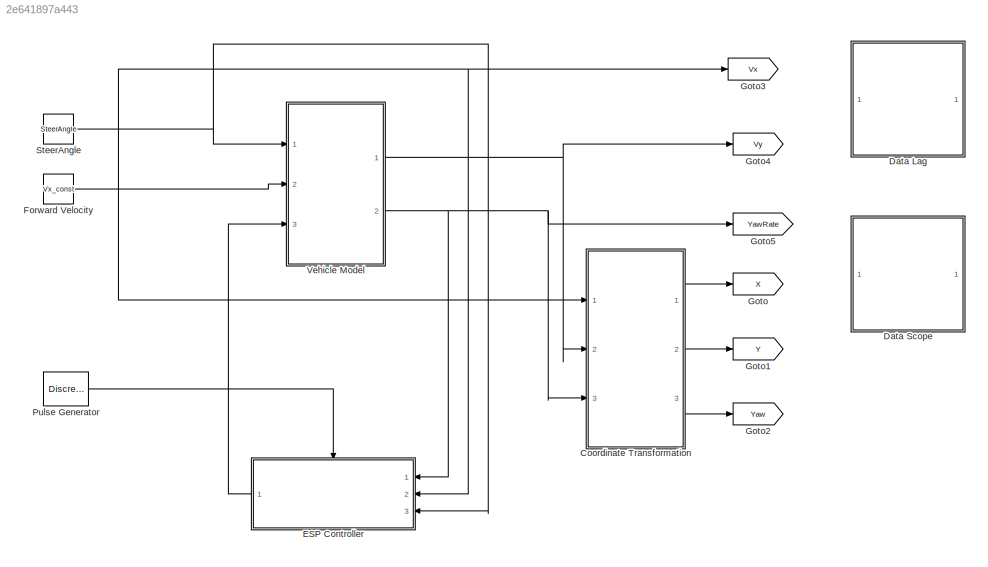
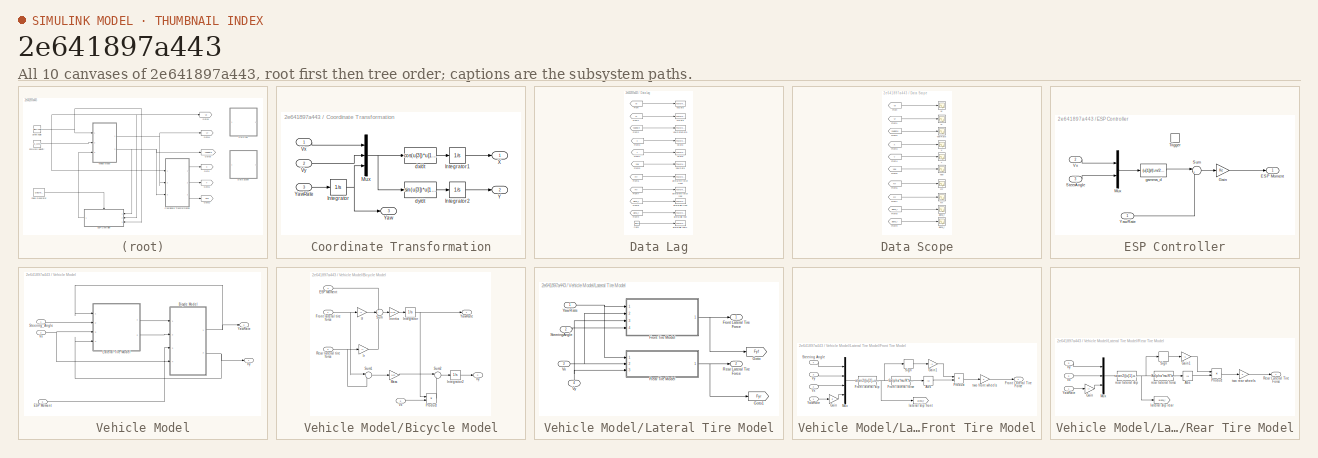
[diagram: thumbnail index - all 10 canvases of the model, root first then tree order]
MODEL slx_2e641897a443
KIND model
CONFIG AbsTol = auto
CONFIG EnableMultiTasking = on
CONFIG FixedStep = auto
CONFIG MaxStep = auto
CONFIG MinStep = auto
CONFIG RelTol = 1e-3
CONFIG SampleTimeConstraint = Unconstrained
CONFIG Solver = ode45
CONFIG SolverName = ode45
CONFIG StartTime = 0.0
CONFIG StopTime = Tfinal
BLOCK [SubSystem] Coordinate Transformation
  Ports = [3, 3]
  RequestExecContextInheritance = off
BLOCK [Integrator] Coordinate Transformation/Integrator
  InitialCondition = Yaw0
  Ports = [1, 1]
BLOCK [Integrator] Coordinate Transformation/Integrator1
  InitialCondition = X0
  Ports = [1, 1]
BLOCK [Integrator] Coordinate Transformation/Integrator2
  InitialCondition = Y0
  Ports = [1, 1]
BLOCK [Mux] Coordinate Transformation/Mux
  DisplayOption = bar
  Inputs = 3
  Ports = [3, 1]
BLOCK [Inport] Coordinate Transformation/Vx
BLOCK [Inport] Coordinate Transformation/Vy
  Port = 2
BLOCK [Outport] Coordinate Transformation/X
BLOCK [Outport] Coordinate Transformation/Y
  Port = 2
BLOCK [Outport] Coordinate Transformation/Yaw
  Port = 3
BLOCK [Inport] Coordinate Transformation/YawRate
  Port = 3
BLOCK [Fcn] Coordinate Transformation/dx//dt
  Expr = cos(u[3])*u[1] - sin(u[3])*u[2]
BLOCK [Fcn] Coordinate Transformation/dy//dt
  Expr = sin(u[3])*u[1] + cos(u[3])*u[2]
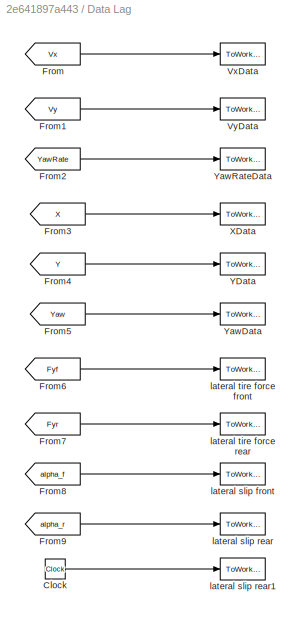
BLOCK [SubSystem] Data Lag
  Ports = []
  RequestExecContextInheritance = off
BLOCK [Clock] Data Lag/Clock
BLOCK [From] Data Lag/From
  CloseFcn = tagdialog Close
  GotoTag = Vx
  TagVisibility = global
BLOCK [From] Data Lag/From1
  CloseFcn = tagdialog Close
  GotoTag = Vy
  TagVisibility = global
BLOCK [From] Data Lag/From2
  CloseFcn = tagdialog Close
  GotoTag = YawRate
  TagVisibility = global
BLOCK [From] Data Lag/From3
  CloseFcn = tagdialog Close
  GotoTag = X
  TagVisibility = global
BLOCK [From] Data Lag/From4
  CloseFcn = tagdialog Close
  GotoTag = Y
  TagVisibility = global
BLOCK [From] Data Lag/From5
  CloseFcn = tagdialog Close
  GotoTag = Yaw
  TagVisibility = global
BLOCK [From] Data Lag/From6
  CloseFcn = tagdialog Close
  GotoTag = Fyf
  TagVisibility = global
BLOCK [From] Data Lag/From7
  CloseFcn = tagdialog Close
  GotoTag = Fyr
  TagVisibility = global
BLOCK [From] Data Lag/From8
  CloseFcn = tagdialog Close
  GotoTag = alpha_f
  TagVisibility = global
BLOCK [From] Data Lag/From9
  CloseFcn = tagdialog Close
  GotoTag = alpha_r
  TagVisibility = global
BLOCK [ToWorkspace] Data Lag/VxData
  MaxDataPoints = inf
  Ports = [1]
  SampleTime = -1
  VariableName = Vx
BLOCK [ToWorkspace] Data Lag/VyData
  MaxDataPoints = inf
  Ports = [1]
  SampleTime = -1
  VariableName = Vy
BLOCK [ToWorkspace] Data Lag/XData
  MaxDataPoints = inf
  Ports = [1]
  SampleTime = -1
  VariableName = X
BLOCK [ToWorkspace] Data Lag/YData
  MaxDataPoints = inf
  Ports = [1]
  SampleTime = -1
  VariableName = Y
BLOCK [ToWorkspace] Data Lag/YawData
  MaxDataPoints = inf
  Ports = [1]
  SampleTime = -1
  VariableName = Yaw
BLOCK [ToWorkspace] Data Lag/YawRateData
  MaxDataPoints = inf
  Ports = [1]
  SampleTime = -1
  VariableName = YawRate
BLOCK [ToWorkspace] Data Lag/lateral slip front
  MaxDataPoints = inf
  Ports = [1]
  SampleTime = -1
  VariableName = alpha_f
BLOCK [ToWorkspace] Data Lag/lateral slip rear
  MaxDataPoints = inf
  Ports = [1]
  SampleTime = -1
  VariableName = alpha_r
BLOCK [ToWorkspace] Data Lag/lateral slip rear1
  MaxDataPoints = inf
  Ports = [1]
  SampleTime = -1
  VariableName = sim_time
BLOCK [ToWorkspace] Data Lag/lateral tire force front
  MaxDataPoints = inf
  Ports = [1]
  SampleTime = -1
  VariableName = Fyf
BLOCK [ToWorkspace] Data Lag/lateral tire force rear
  MaxDataPoints = inf
  Ports = [1]
  SampleTime = -1
  VariableName = Fyr
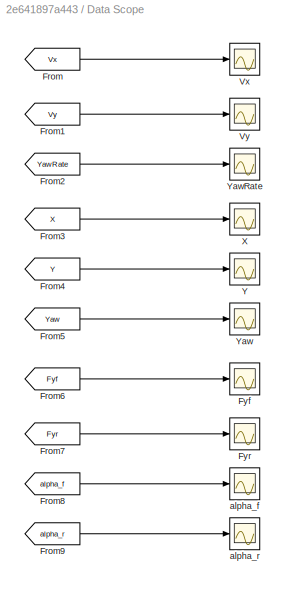
BLOCK [SubSystem] Data Scope
  Ports = []
  RequestExecContextInheritance = off
BLOCK [From] Data Scope/From
  CloseFcn = tagdialog Close
  GotoTag = Vx
  TagVisibility = global
BLOCK [From] Data Scope/From1
  CloseFcn = tagdialog Close
  GotoTag = Vy
  TagVisibility = global
BLOCK [From] Data Scope/From2
  CloseFcn = tagdialog Close
  GotoTag = YawRate
  TagVisibility = global
BLOCK [From] Data Scope/From3
  CloseFcn = tagdialog Close
  GotoTag = X
  TagVisibility = global
BLOCK [From] Data Scope/From4
  CloseFcn = tagdialog Close
  GotoTag = Y
  TagVisibility = global
BLOCK [From] Data Scope/From5
  CloseFcn = tagdialog Close
  GotoTag = Yaw
  TagVisibility = global
BLOCK [From] Data Scope/From6
  CloseFcn = tagdialog Close
  GotoTag = Fyf
  TagVisibility = global
BLOCK [From] Data Scope/From7
  CloseFcn = tagdialog Close
  GotoTag = Fyr
  TagVisibility = global
BLOCK [From] Data Scope/From8
  CloseFcn = tagdialog Close
  GotoTag = alpha_f
  TagVisibility = global
BLOCK [From] Data Scope/From9
  CloseFcn = tagdialog Close
  GotoTag = alpha_r
  TagVisibility = global
BLOCK [Scope] Data Scope/Fyf
  Floating = off
  NumInputPorts = 1
  Ports = [1]
  ScopeSpecificationString = C++SS(StrPVP('Location','[356, 496, 680, 735]'),StrPVP('Open','off'),MxPVP('AxesTitles',54,'struct(''axes1'',''%<SignalLabel>'')'),StrPVP('SaveName','ScopeData1'),StrPVP('DataFormat','StructureWithTime'),StrPVP('BlockParamSampleTime','0'),StrPVP('LimitDataPoints','on'),StrPVP('Decimation','1'),StrPVP('BlockParamSampleInput','off'))
BLOCK [Scope] Data Scope/Fyr
  Floating = off
  NumInputPorts = 1
  Ports = [1]
  ScopeSpecificationString = C++SS(StrPVP('Location','[356, 496, 680, 735]'),StrPVP('Open','off'),MxPVP('AxesTitles',54,'struct(''axes1'',''%<SignalLabel>'')'),StrPVP('SaveName','ScopeData3'),StrPVP('DataFormat','StructureWithTime'),StrPVP('BlockParamSampleTime','0'),StrPVP('LimitDataPoints','on'),StrPVP('Decimation','1'),StrPVP('BlockParamSampleInput','off'))
BLOCK [Scope] Data Scope/Vx
  Floating = off
  NumInputPorts = 1
  Ports = [1]
  ScopeSpecificationString = C++SS(StrPVP('Location','[356, 496, 680, 735]'),StrPVP('Open','off'),MxPVP('AxesTitles',54,'struct(''axes1'',''%<SignalLabel>'')'),StrPVP('SaveName','ScopeData2'),StrPVP('DataFormat','StructureWithTime'),StrPVP('BlockParamSampleTime','0'),StrPVP('LimitDataPoints','on'),StrPVP('Decimation','1'),StrPVP('BlockParamSampleInput','off'))
BLOCK [Scope] Data Scope/Vy
  Floating = off
  NumInputPorts = 1
  Ports = [1]
  ScopeSpecificationString = C++SS(StrPVP('Location','[356, 496, 680, 735]'),StrPVP('Open','off'),MxPVP('AxesTitles',54,'struct(''axes1'',''%<SignalLabel>'')'),StrPVP('SaveName','ScopeData4'),StrPVP('DataFormat','StructureWithTime'),StrPVP('BlockParamSampleTime','0'),StrPVP('LimitDataPoints','on'),StrPVP('Decimation','1'),StrPVP('BlockParamSampleInput','off'))
BLOCK [Scope] Data Scope/X
  Floating = off
  NumInputPorts = 1
  Ports = [1]
  ScopeSpecificationString = C++SS(StrPVP('Location','[353, 490, 677, 729]'),StrPVP('Open','off'),MxPVP('AxesTitles',54,'struct(''axes1'',''%<SignalLabel>'')'),StrPVP('YMin','73.5393'),StrPVP('YMax','81.2803'),StrPVP('SaveName','ScopeData5'),StrPVP('DataFormat','StructureWithTime'),StrPVP('BlockParamSampleTime','0'),StrPVP('LimitDataPoints','on'),StrPVP('Decimation','1'),StrPVP('BlockParamSampleInput','off'))
BLOCK [Scope] Data Scope/Y
  Floating = off
  NumInputPorts = 1
  Ports = [1]
  ScopeSpecificationString = C++SS(StrPVP('Location','[6, 497, 330, 736]'),StrPVP('Open','off'),MxPVP('AxesTitles',54,'struct(''axes1'',''%<SignalLabel>'')'),StrPVP('SaveName','ScopeData6'),StrPVP('DataFormat','StructureWithTime'),StrPVP('BlockParamSampleTime','0'),StrPVP('LimitDataPoints','on'),StrPVP('Decimation','1'),StrPVP('BlockParamSampleInput','off'))
BLOCK [Scope] Data Scope/Yaw
  Floating = off
  NumInputPorts = 1
  Ports = [1]
  ScopeSpecificationString = C++SS(StrPVP('Location','[75, 474, 399, 713]'),StrPVP('Open','off'),MxPVP('AxesTitles',54,'struct(''axes1'',''%<SignalLabel>'')'),StrPVP('SaveName','ScopeData10'),StrPVP('DataFormat','StructureWithTime'),StrPVP('BlockParamSampleTime','0'),StrPVP('LimitDataPoints','on'),StrPVP('Decimation','1'),StrPVP('BlockParamSampleInput','off'))
BLOCK [Scope] Data Scope/YawRate
  Floating = off
  NumInputPorts = 1
  Ports = [1]
  ScopeSpecificationString = C++SS(StrPVP('Location','[695, 498, 1019, 737]'),StrPVP('Open','off'),MxPVP('AxesTitles',54,'struct(''axes1'',''%<SignalLabel>'')'),StrPVP('YMin','23.7489'),StrPVP('YMax','26.2487'),StrPVP('SaveName','ScopeData11'),StrPVP('DataFormat','StructureWithTime'),StrPVP('BlockParamSampleTime','0'),StrPVP('LimitDataPoints','on'),StrPVP('Decimation','1'),StrPVP('BlockParamSampleInput','off'))
BLOCK [Scope] Data Scope/alpha_f
  Floating = off
  NumInputPorts = 1
  Ports = [1]
  ScopeSpecificationString = C++SS(StrPVP('Location','[695, 498, 1019, 737]'),StrPVP('Open','off'),MxPVP('AxesTitles',54,'struct(''axes1'',''%<SignalLabel>'')'),StrPVP('YMin','23.7489'),StrPVP('YMax','26.2487'),StrPVP('SaveName','ScopeData8'),StrPVP('DataFormat','StructureWithTime'),StrPVP('BlockParamSampleTime','0'),StrPVP('LimitDataPoints','on'),StrPVP('Decimation','1'),StrPVP('BlockParamSampleInput','off'))
BLOCK [Scope] Data Scope/alpha_r
  Floating = off
  NumInputPorts = 1
  Ports = [1]
  ScopeSpecificationString = C++SS(StrPVP('Location','[353, 490, 677, 729]'),StrPVP('Open','off'),MxPVP('AxesTitles',54,'struct(''axes1'',''%<SignalLabel>'')'),StrPVP('YMin','73.5393'),StrPVP('YMax','81.2803'),StrPVP('SaveName','ScopeData7'),StrPVP('DataFormat','StructureWithTime'),StrPVP('BlockParamSampleTime','0'),StrPVP('LimitDataPoints','on'),StrPVP('Decimation','1'),StrPVP('BlockParamSampleInput','off'))
BLOCK [SubSystem] ESP Controller
  Ports = [3, 1, 0, 1]
  RequestExecContextInheritance = off
BLOCK [Outport] ESP Controller/ESP Moment
BLOCK [Gain] ESP Controller/Gain
  Gain = Ke
BLOCK [Mux] ESP Controller/Mux
  DisplayOption = bar
  Inputs = 2
  Ports = [2, 1]
BLOCK [Inport] ESP Controller/SteerAngle
  Port = 3
BLOCK [Sum] ESP Controller/Sum
  Inputs = |+-
  Ports = [2, 1]
BLOCK [TriggerPort] ESP Controller/Trigger
  Ports = []
  StatesWhenEnabling = held
  VariantControl = (inherit)
BLOCK [Inport] ESP Controller/Vx
  Port = 2
BLOCK [Inport] ESP Controller/YawRate
BLOCK [Fcn] ESP Controller/gamma_d
  Expr = (u[1])/(l-m/2/l*(lf*Cf - lr*Cr)/Cf/Cr*u[1]^2)*u[2]
BLOCK [Constant] Forward Velocity
  Value = Vx_const
BLOCK [Goto] Goto
  GotoTag = X
  TagVisibility = global
BLOCK [Goto] Goto1
  GotoTag = Y
  TagVisibility = global
BLOCK [Goto] Goto2
  GotoTag = Yaw
  TagVisibility = global
BLOCK [Goto] Goto3
  GotoTag = Vx
  TagVisibility = global
BLOCK [Goto] Goto4
  GotoTag = Vy
  TagVisibility = global
BLOCK [Goto] Goto5
  GotoTag = YawRate
  TagVisibility = global
BLOCK [DiscretePulseGenerator] Pulse Generator
  Period = Tc
  Ports = [0, 1]
  PulseType = Time based
  PulseWidth = 50
BLOCK [Constant] SteerAngle
  Value = SteerAngle
BLOCK [SubSystem] Vehicle Model
  Ports = [3, 2]
  RequestExecContextInheritance = off
BLOCK [SubSystem] Vehicle Model/Bicycle Model
  Ports = [4, 2]
  RequestExecContextInheritance = off
BLOCK [Inport] Vehicle Model/Bicycle Model/ESP Moment
  Port = 4
BLOCK [Inport] Vehicle Model/Bicycle Model/Front lateral tire force
BLOCK [Gain] Vehicle Model/Bicycle Model/Inertia
  Gain = 1/Izz
BLOCK [Integrator] Vehicle Model/Bicycle Model/Integrator
  InitialCondition = yaw_rate0
  Ports = [1, 1]
BLOCK [Integrator] Vehicle Model/Bicycle Model/Integrator2
  InitialCondition = Vy0
  Ports = [1, 1]
BLOCK [Gain] Vehicle Model/Bicycle Model/Mass
  Gain = 1/m
BLOCK [Product] Vehicle Model/Bicycle Model/Product
  Ports = [2, 1]
  RndMeth = Zero
BLOCK [Inport] Vehicle Model/Bicycle Model/Rear lateral tire force
  Port = 2
BLOCK [Sum] Vehicle Model/Bicycle Model/Sum
  Inputs = ++-
  Ports = [3, 1]
BLOCK [Sum] Vehicle Model/Bicycle Model/Sum1
  Inputs = |++
  Ports = [2, 1]
BLOCK [Sum] Vehicle Model/Bicycle Model/Sum2
  Inputs = |+-
  Ports = [2, 1]
BLOCK [Inport] Vehicle Model/Bicycle Model/Vx
  Port = 3
BLOCK [Outport] Vehicle Model/Bicycle Model/Vy
  Port = 2
BLOCK [Outport] Vehicle Model/Bicycle Model/YawRate
BLOCK [Gain] Vehicle Model/Bicycle Model/lf
  Gain = lf
BLOCK [Gain] Vehicle Model/Bicycle Model/lr
  Gain = lr
BLOCK [Inport] Vehicle Model/ESP Moment
  Port = 3
BLOCK [SubSystem] Vehicle Model/Lateral Tire Model
  Ports = [4, 2]
  RequestExecContextInheritance = off
BLOCK [Outport] Vehicle Model/Lateral Tire Model/Front Lateral Tire Force
BLOCK [SubSystem] Vehicle Model/Lateral Tire Model/Front Tire Model
  Ports = [4, 1]
  RequestExecContextInheritance = off
BLOCK [Abs] Vehicle Model/Lateral Tire Model/Front Tire Model/Abs
  SaturateOnIntegerOverflow = off
BLOCK [Outport] Vehicle Model/Lateral Tire Model/Front Tire Model/Front Lateral Tire Force
BLOCK [Fcn] Vehicle Model/Lateral Tire Model/Front Tire Model/Front lateral force
  Expr = Calpha*mu/K*atan(K*u[1]/mu)
BLOCK [Fcn] Vehicle Model/Lateral Tire Model/Front Tire Model/Front lateral slip
  Expr = atan2((u[2]+u[4]), u[3])-u[1]
BLOCK [Gain] Vehicle Model/Lateral Tire Model/Front Tire Model/Gain
  Gain = lf
BLOCK [Gain] Vehicle Model/Lateral Tire Model/Front Tire Model/Gain1
  Gain = -1
BLOCK [Mux] Vehicle Model/Lateral Tire Model/Front Tire Model/Mux
  DisplayOption = bar
  Ports = [4, 1]
BLOCK [Product] Vehicle Model/Lateral Tire Model/Front Tire Model/Product
  Ports = [2, 1]
  RndMeth = Zero
BLOCK [Signum] Vehicle Model/Lateral Tire Model/Front Tire Model/Sign
BLOCK [Inport] Vehicle Model/Lateral Tire Model/Front Tire Model/Steering Angle
  Port = 4
BLOCK [Inport] Vehicle Model/Lateral Tire Model/Front Tire Model/Vx
  Port = 2
BLOCK [Inport] Vehicle Model/Lateral Tire Model/Front Tire Model/Vy
  Port = 3
BLOCK [Inport] Vehicle Model/Lateral Tire Model/Front Tire Model/YawRate
BLOCK [Goto] Vehicle Model/Lateral Tire Model/Front Tire Model/lateral slip front
  GotoTag = alpha_f
  TagVisibility = global
BLOCK [Gain] Vehicle Model/Lateral Tire Model/Front Tire Model/two front wheels
  Gain = 2
BLOCK [Goto] Vehicle Model/Lateral Tire Model/Goto
  GotoTag = Fyf
  TagVisibility = global
BLOCK [Goto] Vehicle Model/Lateral Tire Model/Goto1
  GotoTag = Fyr
  TagVisibility = global
BLOCK [Outport] Vehicle Model/Lateral Tire Model/Rear Lateral Tire Force
  Port = 2
BLOCK [SubSystem] Vehicle Model/Lateral Tire Model/Rear Tire Model
  Ports = [3, 1]
  RequestExecContextInheritance = off
BLOCK [Abs] Vehicle Model/Lateral Tire Model/Rear Tire Model/Abs
  SaturateOnIntegerOverflow = off
BLOCK [Gain] Vehicle Model/Lateral Tire Model/Rear Tire Model/Gain
  Gain = lr
BLOCK [Gain] Vehicle Model/Lateral Tire Model/Rear Tire Model/Gain1
  Gain = -1
BLOCK [Mux] Vehicle Model/Lateral Tire Model/Rear Tire Model/Mux
  DisplayOption = bar
  Inputs = 3
  Ports = [3, 1]
BLOCK [Product] Vehicle Model/Lateral Tire Model/Rear Tire Model/Product
  Ports = [2, 1]
  RndMeth = Zero
BLOCK [Outport] Vehicle Model/Lateral Tire Model/Rear Tire Model/Rear Lateral Tire Force
BLOCK [Signum] Vehicle Model/Lateral Tire Model/Rear Tire Model/Sign
BLOCK [Inport] Vehicle Model/Lateral Tire Model/Rear Tire Model/Vx
  Port = 2
BLOCK [Inport] Vehicle Model/Lateral Tire Model/Rear Tire Model/Vy
  Port = 3
BLOCK [Inport] Vehicle Model/Lateral Tire Model/Rear Tire Model/YawRate
BLOCK [Goto] Vehicle Model/Lateral Tire Model/Rear Tire Model/lateral slip rear
  GotoTag = alpha_r
  TagVisibility = global
BLOCK [Fcn] Vehicle Model/Lateral Tire Model/Rear Tire Model/rear lateral force
  Expr = Calpha*mu/K*atan(K*u[1]/mu)
BLOCK [Fcn] Vehicle Model/Lateral Tire Model/Rear Tire Model/rear lateral slip
  Expr = atan2((u[1]-u[3]), u[2])
BLOCK [Gain] Vehicle Model/Lateral Tire Model/Rear Tire Model/two rear wheels
  Gain = 2
BLOCK [Inport] Vehicle Model/Lateral Tire Model/SteeringAngle
  Port = 2
BLOCK [Inport] Vehicle Model/Lateral Tire Model/Vx
  Port = 3
BLOCK [Inport] Vehicle Model/Lateral Tire Model/Vy
  NameLocation = left
  Port = 4
BLOCK [Inport] Vehicle Model/Lateral Tire Model/YawRate
BLOCK [Inport] Vehicle Model/Steering_Angle
BLOCK [Inport] Vehicle Model/Vx
  Port = 2
BLOCK [Outport] Vehicle Model/Vy
BLOCK [Outport] Vehicle Model/YawRate
  Port = 2
LINE Coordinate Transformation/Integrator1:1 -> Coordinate Transformation/X:1
LINE Coordinate Transformation/Integrator2:1 -> Coordinate Transformation/Y:1
NET Coordinate Transformation/Integrator:1 -> Coordinate Transformation/Mux:3, Coordinate Transformation/Yaw:1
NET Coordinate Transformation/Mux:1 -> Coordinate Transformation/dx//dt:1, Coordinate Transformation/dy//dt:1
LINE Coordinate Transformation/Vx:1 -> Coordinate Transformation/Mux:1
LINE Coordinate Transformation/Vy:1 -> Coordinate Transformation/Mux:2
LINE Coordinate Transformation/YawRate:1 -> Coordinate Transformation/Integrator:1
LINE Coordinate Transformation/dx//dt:1 -> Coordinate Transformation/Integrator1:1
LINE Coordinate Transformation/dy//dt:1 -> Coordinate Transformation/Integrator2:1
LINE Coordinate Transformation:1 -> Goto:1
LINE Coordinate Transformation:2 -> Goto1:1
LINE Coordinate Transformation:3 -> Goto2:1
LINE Data Lag/Clock:1 -> Data Lag/lateral slip rear1:1
LINE Data Lag/From1:1 -> Data Lag/VyData:1
LINE Data Lag/From2:1 -> Data Lag/YawRateData:1
LINE Data Lag/From3:1 -> Data Lag/XData:1
LINE Data Lag/From4:1 -> Data Lag/YData:1
LINE Data Lag/From5:1 -> Data Lag/YawData:1
LINE Data Lag/From6:1 -> Data Lag/lateral tire force front:1
LINE Data Lag/From7:1 -> Data Lag/lateral tire force rear:1
LINE Data Lag/From8:1 -> Data Lag/lateral slip front:1
LINE Data Lag/From9:1 -> Data Lag/lateral slip rear:1
LINE Data Lag/From:1 -> Data Lag/VxData:1
LINE Data Scope/From1:1 -> Data Scope/Vy:1
LINE Data Scope/From2:1 -> Data Scope/YawRate:1
LINE Data Scope/From3:1 -> Data Scope/X:1
LINE Data Scope/From4:1 -> Data Scope/Y:1
LINE Data Scope/From5:1 -> Data Scope/Yaw:1
LINE Data Scope/From6:1 -> Data Scope/Fyf:1
LINE Data Scope/From7:1 -> Data Scope/Fyr:1
LINE Data Scope/From8:1 -> Data Scope/alpha_f:1
LINE Data Scope/From9:1 -> Data Scope/alpha_r:1
LINE Data Scope/From:1 -> Data Scope/Vx:1
LINE ESP Controller/Gain:1 -> ESP Controller/ESP Moment:1
LINE ESP Controller/Mux:1 -> ESP Controller/gamma_d:1
LINE ESP Controller/SteerAngle:1 -> ESP Controller/Mux:2
LINE ESP Controller/Sum:1 -> ESP Controller/Gain:1
LINE ESP Controller/Vx:1 -> ESP Controller/Mux:1
LINE ESP Controller/YawRate:1 -> ESP Controller/Sum:2
LINE ESP Controller/gamma_d:1 -> ESP Controller/Sum:1
LINE ESP Controller:1 -> Vehicle Model:3
NET Forward Velocity:1 -> Coordinate Transformation:1, ESP Controller:2, Goto3:1, Vehicle Model:2
LINE Pulse Generator:1 -> ESP Controller:trigger
NET SteerAngle:1 -> ESP Controller:3, Vehicle Model:1
LINE Vehicle Model/Bicycle Model/ESP Moment:1 -> Vehicle Model/Bicycle Model/Sum:1
NET Vehicle Model/Bicycle Model/Front lateral tire force:1 -> Vehicle Model/Bicycle Model/Sum1:1, Vehicle Model/Bicycle Model/lf:1
LINE Vehicle Model/Bicycle Model/Inertia:1 -> Vehicle Model/Bicycle Model/Integrator:1
LINE Vehicle Model/Bicycle Model/Integrator2:1 -> Vehicle Model/Bicycle Model/Vy:1
NET Vehicle Model/Bicycle Model/Integrator:1 -> Vehicle Model/Bicycle Model/Product:1, Vehicle Model/Bicycle Model/YawRate:1
LINE Vehicle Model/Bicycle Model/Mass:1 -> Vehicle Model/Bicycle Model/Sum2:1
LINE Vehicle Model/Bicycle Model/Product:1 -> Vehicle Model/Bicycle Model/Sum2:2
NET Vehicle Model/Bicycle Model/Rear lateral tire force:1 -> Vehicle Model/Bicycle Model/Sum1:2, Vehicle Model/Bicycle Model/lr:1
LINE Vehicle Model/Bicycle Model/Sum1:1 -> Vehicle Model/Bicycle Model/Mass:1
LINE Vehicle Model/Bicycle Model/Sum2:1 -> Vehicle Model/Bicycle Model/Integrator2:1
LINE Vehicle Model/Bicycle Model/Sum:1 -> Vehicle Model/Bicycle Model/Inertia:1
LINE Vehicle Model/Bicycle Model/Vx:1 -> Vehicle Model/Bicycle Model/Product:2
LINE Vehicle Model/Bicycle Model/lf:1 -> Vehicle Model/Bicycle Model/Sum:2
LINE Vehicle Model/Bicycle Model/lr:1 -> Vehicle Model/Bicycle Model/Sum:3
NET Vehicle Model/Bicycle Model:1 -> Vehicle Model/Lateral Tire Model:1, Vehicle Model/YawRate:1
NET Vehicle Model/Bicycle Model:2 -> Vehicle Model/Lateral Tire Model:4, Vehicle Model/Vy:1
LINE Vehicle Model/ESP Moment:1 -> Vehicle Model/Bicycle Model:4
LINE Vehicle Model/Lateral Tire Model/Front Tire Model/Abs:1 -> Vehicle Model/Lateral Tire Model/Front Tire Model/Product:2
LINE Vehicle Model/Lateral Tire Model/Front Tire Model/Front lateral force:1 -> Vehicle Model/Lateral Tire Model/Front Tire Model/Abs:1
NET Vehicle Model/Lateral Tire Model/Front Tire Model/Front lateral slip:1 -> Vehicle Model/Lateral Tire Model/Front Tire Model/Front lateral force:1, Vehicle Model/Lateral Tire Model/Front Tire Model/Sign:1, Vehicle Model/Lateral Tire Model/Front Tire Model/lateral slip front:1
LINE Vehicle Model/Lateral Tire Model/Front Tire Model/Gain1:1 -> Vehicle Model/Lateral Tire Model/Front Tire Model/Product:1
LINE Vehicle Model/Lateral Tire Model/Front Tire Model/Gain:1 -> Vehicle Model/Lateral Tire Model/Front Tire Model/Mux:4
LINE Vehicle Model/Lateral Tire Model/Front Tire Model/Mux:1 -> Vehicle Model/Lateral Tire Model/Front Tire Model/Front lateral slip:1
LINE Vehicle Model/Lateral Tire Model/Front Tire Model/Product:1 -> Vehicle Model/Lateral Tire Model/Front Tire Model/two front wheels:1
LINE Vehicle Model/Lateral Tire Model/Front Tire Model/Sign:1 -> Vehicle Model/Lateral Tire Model/Front Tire Model/Gain1:1
LINE Vehicle Model/Lateral Tire Model/Front Tire Model/Steering Angle:1 -> Vehicle Model/Lateral Tire Model/Front Tire Model/Mux:1
LINE Vehicle Model/Lateral Tire Model/Front Tire Model/Vx:1 -> Vehicle Model/Lateral Tire Model/Front Tire Model/Mux:3
LINE Vehicle Model/Lateral Tire Model/Front Tire Model/Vy:1 -> Vehicle Model/Lateral Tire Model/Front Tire Model/Mux:2
LINE Vehicle Model/Lateral Tire Model/Front Tire Model/YawRate:1 -> Vehicle Model/Lateral Tire Model/Front Tire Model/Gain:1
LINE Vehicle Model/Lateral Tire Model/Front Tire Model/two front wheels:1 -> Vehicle Model/Lateral Tire Model/Front Tire Model/Front Lateral Tire Force:1
NET Vehicle Model/Lateral Tire Model/Front Tire Model:1 -> Vehicle Model/Lateral Tire Model/Front Lateral Tire Force:1, Vehicle Model/Lateral Tire Model/Goto:1
LINE Vehicle Model/Lateral Tire Model/Rear Tire Model/Abs:1 -> Vehicle Model/Lateral Tire Model/Rear Tire Model/Product:2
LINE Vehicle Model/Lateral Tire Model/Rear Tire Model/Gain1:1 -> Vehicle Model/Lateral Tire Model/Rear Tire Model/Product:1
LINE Vehicle Model/Lateral Tire Model/Rear Tire Model/Gain:1 -> Vehicle Model/Lateral Tire Model/Rear Tire Model/Mux:3
LINE Vehicle Model/Lateral Tire Model/Rear Tire Model/Mux:1 -> Vehicle Model/Lateral Tire Model/Rear Tire Model/rear lateral slip:1
LINE Vehicle Model/Lateral Tire Model/Rear Tire Model/Product:1 -> Vehicle Model/Lateral Tire Model/Rear Tire Model/two rear wheels:1
LINE Vehicle Model/Lateral Tire Model/Rear Tire Model/Sign:1 -> Vehicle Model/Lateral Tire Model/Rear Tire Model/Gain1:1
LINE Vehicle Model/Lateral Tire Model/Rear Tire Model/Vx:1 -> Vehicle Model/Lateral Tire Model/Rear Tire Model/Mux:2
LINE Vehicle Model/Lateral Tire Model/Rear Tire Model/Vy:1 -> Vehicle Model/Lateral Tire Model/Rear Tire Model/Mux:1
LINE Vehicle Model/Lateral Tire Model/Rear Tire Model/YawRate:1 -> Vehicle Model/Lateral Tire Model/Rear Tire Model/Gain:1
LINE Vehicle Model/Lateral Tire Model/Rear Tire Model/rear lateral force:1 -> Vehicle Model/Lateral Tire Model/Rear Tire Model/Abs:1
NET Vehicle Model/Lateral Tire Model/Rear Tire Model/rear lateral slip:1 -> Vehicle Model/Lateral Tire Model/Rear Tire Model/Sign:1, Vehicle Model/Lateral Tire Model/Rear Tire Model/lateral slip rear:1, Vehicle Model/Lateral Tire Model/Rear Tire Model/rear lateral force:1
LINE Vehicle Model/Lateral Tire Model/Rear Tire Model/two rear wheels:1 -> Vehicle Model/Lateral Tire Model/Rear Tire Model/Rear Lateral Tire Force:1
NET Vehicle Model/Lateral Tire Model/Rear Tire Model:1 -> Vehicle Model/Lateral Tire Model/Goto1:1, Vehicle Model/Lateral Tire Model/Rear Lateral Tire Force:1
LINE Vehicle Model/Lateral Tire Model/SteeringAngle:1 -> Vehicle Model/Lateral Tire Model/Front Tire Model:4
NET Vehicle Model/Lateral Tire Model/Vx:1 -> Vehicle Model/Lateral Tire Model/Front Tire Model:2, Vehicle Model/Lateral Tire Model/Rear Tire Model:2
NET Vehicle Model/Lateral Tire Model/Vy:1 -> Vehicle Model/Lateral Tire Model/Front Tire Model:3, Vehicle Model/Lateral Tire Model/Rear Tire Model:3
NET Vehicle Model/Lateral Tire Model/YawRate:1 -> Vehicle Model/Lateral Tire Model/Front Tire Model:1, Vehicle Model/Lateral Tire Model/Rear Tire Model:1
LINE Vehicle Model/Lateral Tire Model:1 -> Vehicle Model/Bicycle Model:1
LINE Vehicle Model/Lateral Tire Model:2 -> Vehicle Model/Bicycle Model:2
LINE Vehicle Model/Steering_Angle:1 -> Vehicle Model/Lateral Tire Model:2
NET Vehicle Model/Vx:1 -> Vehicle Model/Bicycle Model:3, Vehicle Model/Lateral Tire Model:3
NET Vehicle Model:1 -> Coordinate Transformation:2, Goto4:1
NET Vehicle Model:2 -> Coordinate Transformation:3, ESP Controller:1, Goto5:1
note: NET lines group one-source signal fan-out (src -> all destinations, sorted); 1:1 wires keep LINE
